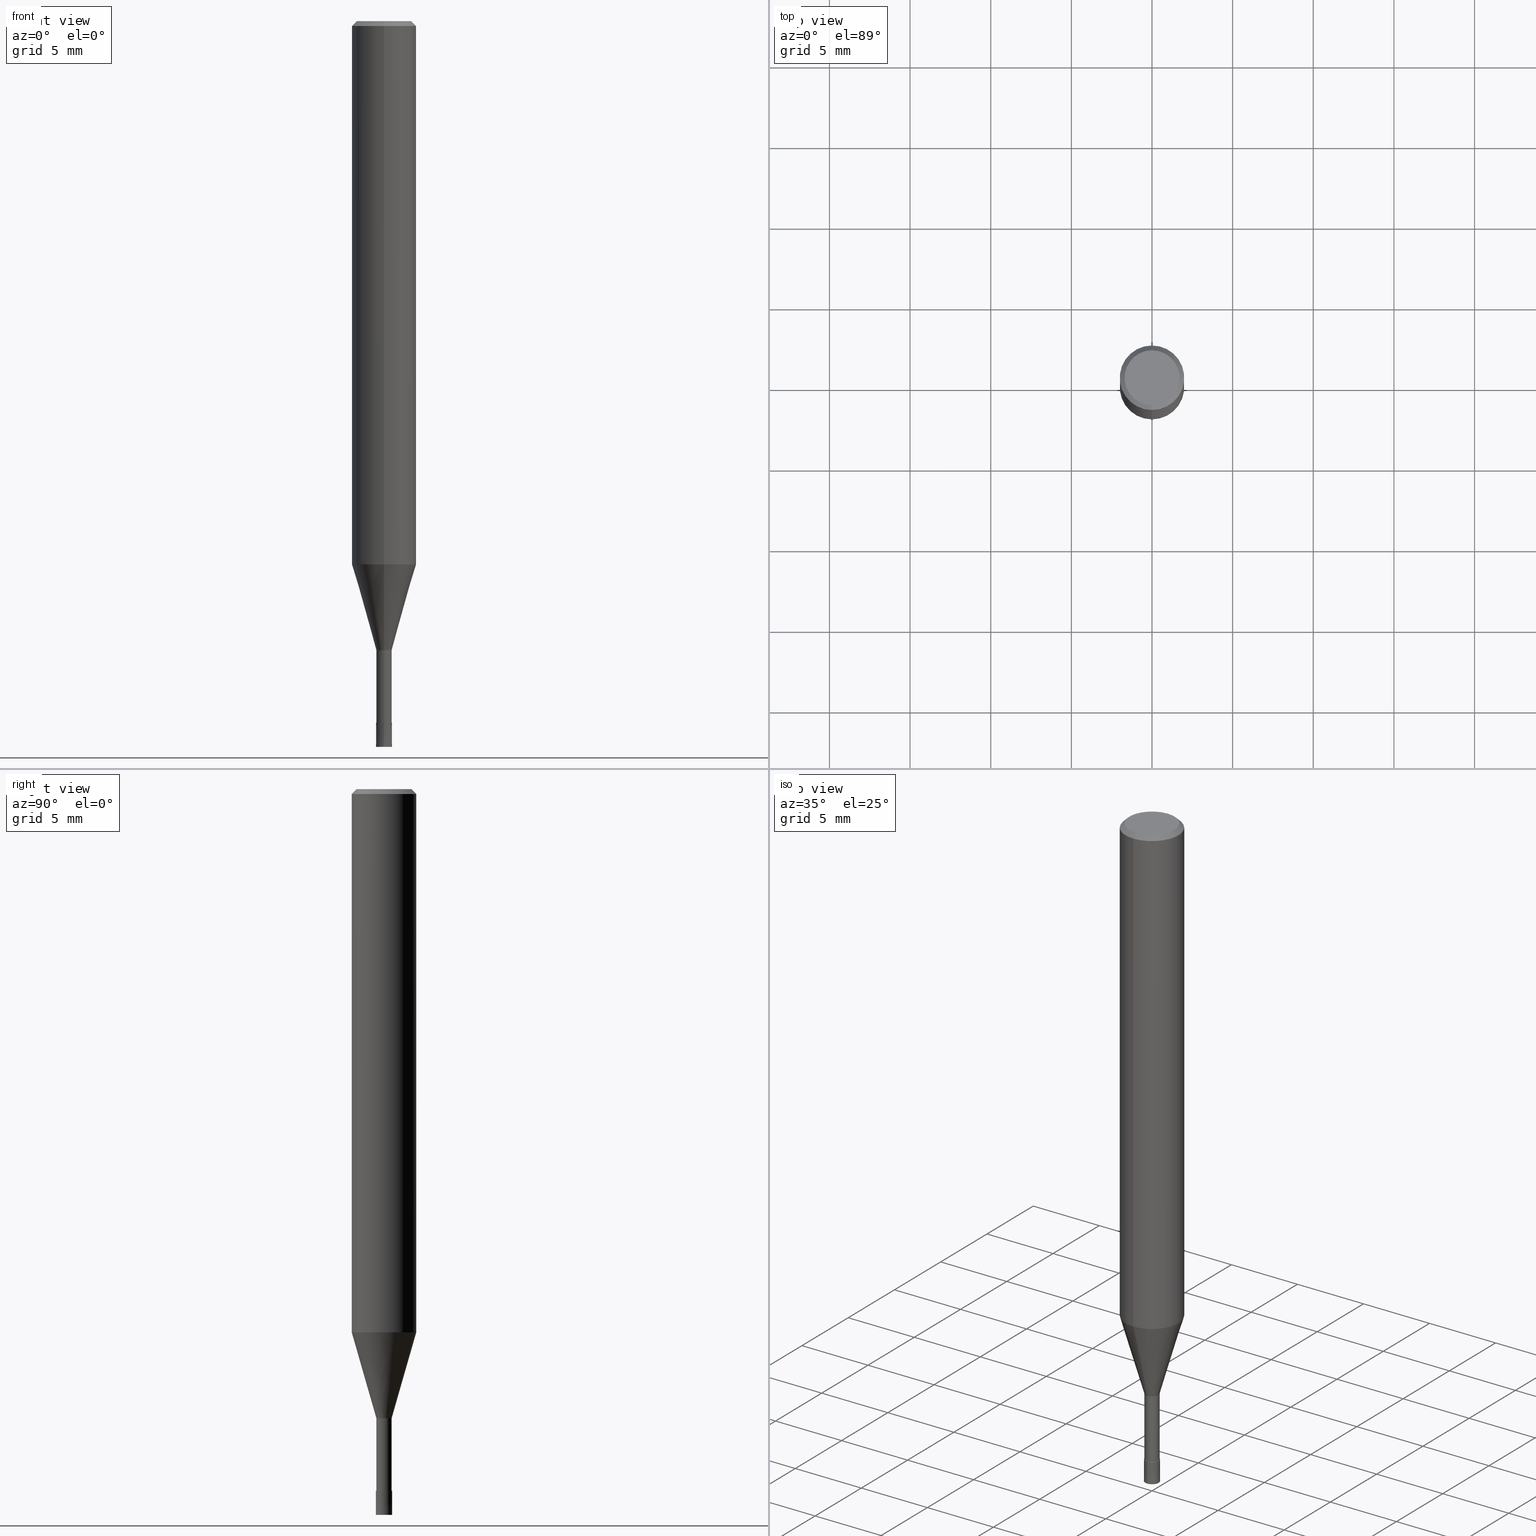
[diagram: canonical four-view strip — front | top / right | iso, engineering-drawing reading convention]
A machine part, canonical four-view strip (front | top / right | iso — engineering-drawing reading convention). The complete STEP part file that produces these views, byte-faithful:
ISO-10303-21;
HEADER;
FILE_DESCRIPTION(('no description'),'unknown implementation level');
FILE_NAME('HLS2010-060-Huellk.stp','  ',('CIMSOURCE GmbH'),('CADClick - KiM GmbH - www.kimweb.de'),'unknown preprocess','ACIS','unknown authorization');
FILE_SCHEMA(('automotive_design'));
ENDSEC;
DATA;
#1=MECHANICAL_DESIGN_GEOMETRIC_PRESENTATION_REPRESENTATION(' ',(#14,#15,#16,#17,#18,#19,#20,#21,#22,#23,#24,#25,#26,#27,#28,#29,#30,#31,#32,#33,#34,#35,#36,#37,#38,#39,#40,#41,#42,#43,#44,#45,#46,#47,#48,#49,#50,#51,#52,#53,#54,#55,#56,#57,#58,#59,#60,#61,#62,#63,#64,#65,#66,#67,#68,#69,#70,#71,#72),#10);
#2=PRODUCT_DEFINITION_CONTEXT('',#73,'design');
#3=APPLICATION_PROTOCOL_DEFINITION('INTERNATIONAL STANDARD','automotive_design',1994,#73);
#4=PRODUCT_CATEGORY_RELATIONSHIP('NONE','NONE',#74,#75);
#5=SHAPE_DEFINITION_REPRESENTATION(#76,#77);
#6=PRODUCT_DEFINITION_CONTEXT('',#78,'design');
#7=APPLICATION_PROTOCOL_DEFINITION('INTERNATIONAL STANDARD','automotive_design',1994,#78);
#8=PRODUCT_CATEGORY_RELATIONSHIP('NONE','NONE',#79,#80);
#9=SHAPE_DEFINITION_REPRESENTATION(#81,#82);
#10= (GEOMETRIC_REPRESENTATION_CONTEXT(3)GLOBAL_UNCERTAINTY_ASSIGNED_CONTEXT((#85))GLOBAL_UNIT_ASSIGNED_CONTEXT((#87,#88,#89))REPRESENTATION_CONTEXT('NONE','WORKSPACE'));
#14=STYLED_ITEM('',(#91),#92);
#15=STYLED_ITEM('',(#93),#94);
#16=STYLED_ITEM('',(#95),#96);
#17=STYLED_ITEM('',(#97),#98);
#18=STYLED_ITEM('',(#99),#100);
#19=STYLED_ITEM('',(#101),#102);
#20=STYLED_ITEM('',(#103),#104);
#21=STYLED_ITEM('',(#105),#106);
#22=STYLED_ITEM('',(#107),#108);
#23=STYLED_ITEM('',(#109),#110);
#24=STYLED_ITEM('',(#111),#112);
#25=STYLED_ITEM('',(#113),#114);
#26=STYLED_ITEM('',(#115),#116);
#27=STYLED_ITEM('',(#117),#118);
#28=STYLED_ITEM('',(#119),#120);
#29=STYLED_ITEM('',(#121),#122);
#30=STYLED_ITEM('',(#123),#124);
#31=STYLED_ITEM('',(#125),#126);
#32=STYLED_ITEM('',(#127),#128);
#33=STYLED_ITEM('',(#129),#130);
#34=STYLED_ITEM('',(#131),#132);
#35=STYLED_ITEM('',(#133),#134);
#36=STYLED_ITEM('',(#135),#136);
#37=STYLED_ITEM('',(#137),#138);
#38=STYLED_ITEM('',(#139),#140);
#39=STYLED_ITEM('',(#141),#142);
#40=STYLED_ITEM('',(#143),#144);
#41=STYLED_ITEM('',(#145),#146);
#42=STYLED_ITEM('',(#147),#148);
#43=STYLED_ITEM('',(#149),#150);
#44=STYLED_ITEM('',(#151),#152);
#45=STYLED_ITEM('',(#153),#154);
#46=STYLED_ITEM('',(#155),#156);
#47=STYLED_ITEM('',(#157),#158);
#48=STYLED_ITEM('',(#159),#160);
#49=STYLED_ITEM('',(#161),#162);
#50=STYLED_ITEM('',(#163),#164);
#51=STYLED_ITEM('',(#165),#166);
#52=STYLED_ITEM('',(#167),#168);
#53=STYLED_ITEM('',(#169),#170);
#54=STYLED_ITEM('',(#171),#172);
#55=STYLED_ITEM('',(#173),#174);
#56=STYLED_ITEM('',(#175),#176);
#57=STYLED_ITEM('',(#177),#178);
#58=STYLED_ITEM('',(#179),#180);
#59=STYLED_ITEM('',(#181),#182);
#60=STYLED_ITEM('',(#183),#184);
#61=STYLED_ITEM('',(#185),#186);
#62=STYLED_ITEM('',(#187),#188);
#63=STYLED_ITEM('',(#189),#190);
#64=STYLED_ITEM('',(#191),#192);
#65=STYLED_ITEM('',(#193),#194);
#66=STYLED_ITEM('',(#195),#196);
#67=STYLED_ITEM('',(#197),#198);
#68=STYLED_ITEM('',(#199),#200);
#69=STYLED_ITEM('',(#201),#202);
#70=STYLED_ITEM('',(#203),#204);
#71=STYLED_ITEM('',(#205),#206);
#72=STYLED_ITEM('',(#207),#208);
#73=APPLICATION_CONTEXT(' ');
#74=PRODUCT_CATEGORY('part','NONE');
#75=PRODUCT_RELATED_PRODUCT_CATEGORY('detail',' ',(#209));
#76=PRODUCT_DEFINITION_SHAPE('NONE','NONE',#210);
#77=ADVANCED_BREP_SHAPE_REPRESENTATION('1',(#138,#211),#10);
#78=APPLICATION_CONTEXT(' ');
#79=PRODUCT_CATEGORY('part','NONE');
#80=PRODUCT_RELATED_PRODUCT_CATEGORY('detail',' ',(#212));
#81=PRODUCT_DEFINITION_SHAPE('NONE','NONE',#213);
#82=ADVANCED_BREP_SHAPE_REPRESENTATION('2',(#126,#214),#10);
#85=UNCERTAINTY_MEASURE_WITH_UNIT(LENGTH_MEASURE(1.0E-006),#87,'','');
#87= (CONVERSION_BASED_UNIT('MILLIMETRE',#217)LENGTH_UNIT()NAMED_UNIT(#220));
#88= (NAMED_UNIT(#222)PLANE_ANGLE_UNIT()SI_UNIT($,.RADIAN.));
#89= (NAMED_UNIT(#222)SOLID_ANGLE_UNIT()SI_UNIT($,.STERADIAN.));
#91=PRESENTATION_STYLE_ASSIGNMENT((#228));
#92=VERTEX_POINT('',#229);
#93=PRESENTATION_STYLE_ASSIGNMENT((#230));
#94=EDGE_CURVE('',#98,#148,#231,.T.);
#95=PRESENTATION_STYLE_ASSIGNMENT((#232));
#96=EDGE_CURVE('',#204,#196,#233,.T.);
#97=PRESENTATION_STYLE_ASSIGNMENT((#234));
#98=VERTEX_POINT('',#235);
#99=PRESENTATION_STYLE_ASSIGNMENT((#236));
#100=EDGE_CURVE('',#162,#146,#237,.T.);
#101=PRESENTATION_STYLE_ASSIGNMENT((#238));
#102=EDGE_CURVE('',#98,#92,#239,.T.);
#103=PRESENTATION_STYLE_ASSIGNMENT((#240));
#104=VERTEX_POINT('',#241);
#105=PRESENTATION_STYLE_ASSIGNMENT((#242));
#106=VERTEX_POINT('',#243);
#107=PRESENTATION_STYLE_ASSIGNMENT((#244));
#108=VERTEX_POINT('',#245);
#109=PRESENTATION_STYLE_ASSIGNMENT((#246));
#110=EDGE_CURVE('',#108,#196,#247,.T.);
#111=PRESENTATION_STYLE_ASSIGNMENT((#248));
#112=EDGE_CURVE('',#148,#104,#249,.T.);
#113=PRESENTATION_STYLE_ASSIGNMENT((#250));
#114=EDGE_CURVE('',#190,#104,#251,.T.);
#115=PRESENTATION_STYLE_ASSIGNMENT((#252));
#116=EDGE_CURVE('',#106,#204,#253,.T.);
#117=PRESENTATION_STYLE_ASSIGNMENT((#254));
#118=ADVANCED_FACE('',(#255),#256,.T.);
#119=PRESENTATION_STYLE_ASSIGNMENT((#257));
#120=ADVANCED_FACE('',(#258),#259,.T.);
#121=PRESENTATION_STYLE_ASSIGNMENT((#260));
#122=VERTEX_POINT('',#261);
#123=PRESENTATION_STYLE_ASSIGNMENT((#262));
#124=EDGE_CURVE('',#122,#106,#263,.T.);
#125=PRESENTATION_STYLE_ASSIGNMENT((#264));
#126=MANIFOLD_SOLID_BREP('2',#265);
#127=PRESENTATION_STYLE_ASSIGNMENT((#266));
#128=EDGE_CURVE('',#180,#92,#267,.T.);
#129=PRESENTATION_STYLE_ASSIGNMENT((#268));
#130=ADVANCED_FACE('',(#269),#270,.T.);
#131=PRESENTATION_STYLE_ASSIGNMENT((#271));
#132=EDGE_CURVE('',#204,#172,#272,.T.);
#133=PRESENTATION_STYLE_ASSIGNMENT((#273));
#134=EDGE_CURVE('',#164,#142,#274,.T.);
#135=PRESENTATION_STYLE_ASSIGNMENT((#275));
#136=ADVANCED_FACE('',(#276),#277,.T.);
#137=PRESENTATION_STYLE_ASSIGNMENT((#278));
#138=MANIFOLD_SOLID_BREP('1',#279);
#139=PRESENTATION_STYLE_ASSIGNMENT((#280));
#140=EDGE_CURVE('',#104,#190,#281,.T.);
#141=PRESENTATION_STYLE_ASSIGNMENT((#282));
#142=VERTEX_POINT('',#283);
#143=PRESENTATION_STYLE_ASSIGNMENT((#284));
#144=ADVANCED_FACE('',(#285),#286,.T.);
#145=PRESENTATION_STYLE_ASSIGNMENT((#287));
#146=VERTEX_POINT('',#288);
#147=PRESENTATION_STYLE_ASSIGNMENT((#289));
#148=VERTEX_POINT('',#290);
#149=PRESENTATION_STYLE_ASSIGNMENT((#291));
#150=ADVANCED_FACE('',(#292),#293,.T.);
#151=PRESENTATION_STYLE_ASSIGNMENT((#294));
#152=ADVANCED_FACE('',(#295),#296,.T.);
#153=PRESENTATION_STYLE_ASSIGNMENT((#297));
#154=EDGE_CURVE('',#92,#180,#298,.T.);
#155=PRESENTATION_STYLE_ASSIGNMENT((#299));
#156=ADVANCED_FACE('',(#300),#301,.T.);
#157=PRESENTATION_STYLE_ASSIGNMENT((#302));
#158=EDGE_CURVE('',#142,#146,#303,.T.);
#159=PRESENTATION_STYLE_ASSIGNMENT((#304));
#160=EDGE_CURVE('',#180,#148,#305,.T.);
#161=PRESENTATION_STYLE_ASSIGNMENT((#306));
#162=VERTEX_POINT('',#307);
#163=PRESENTATION_STYLE_ASSIGNMENT((#308));
#164=VERTEX_POINT('',#309);
#165=PRESENTATION_STYLE_ASSIGNMENT((#310));
#166=EDGE_CURVE('',#162,#164,#311,.T.);
#167=PRESENTATION_STYLE_ASSIGNMENT((#312));
#168=EDGE_CURVE('',#172,#108,#313,.T.);
#169=PRESENTATION_STYLE_ASSIGNMENT((#314));
#170=ADVANCED_FACE('',(#315),#316,.T.);
#171=PRESENTATION_STYLE_ASSIGNMENT((#317));
#172=VERTEX_POINT('',#318);
#173=PRESENTATION_STYLE_ASSIGNMENT((#319));
#174=EDGE_CURVE('',#190,#98,#320,.T.);
#175=PRESENTATION_STYLE_ASSIGNMENT((#321));
#176=EDGE_CURVE('',#146,#162,#322,.T.);
#177=PRESENTATION_STYLE_ASSIGNMENT((#323));
#178=ADVANCED_FACE('',(#324),#325,.T.);
#179=PRESENTATION_STYLE_ASSIGNMENT((#326));
#180=VERTEX_POINT('',#327);
#181=PRESENTATION_STYLE_ASSIGNMENT((#328));
#182=ADVANCED_FACE('',(#329),#330,.T.);
#183=PRESENTATION_STYLE_ASSIGNMENT((#331));
#184=ADVANCED_FACE('',(#332),#333,.T.);
#185=PRESENTATION_STYLE_ASSIGNMENT((#334));
#186=EDGE_CURVE('',#196,#122,#335,.T.);
#187=PRESENTATION_STYLE_ASSIGNMENT((#336));
#188=ADVANCED_FACE('',(#337),#338,.T.);
#189=PRESENTATION_STYLE_ASSIGNMENT((#339));
#190=VERTEX_POINT('',#340);
#191=PRESENTATION_STYLE_ASSIGNMENT((#341));
#192=EDGE_CURVE('',#196,#204,#342,.T.);
#193=PRESENTATION_STYLE_ASSIGNMENT((#343));
#194=EDGE_CURVE('',#106,#122,#344,.T.);
#195=PRESENTATION_STYLE_ASSIGNMENT((#345));
#196=VERTEX_POINT('',#346);
#197=PRESENTATION_STYLE_ASSIGNMENT((#347));
#198=EDGE_CURVE('',#142,#164,#348,.T.);
#199=PRESENTATION_STYLE_ASSIGNMENT((#349));
#200=ADVANCED_FACE('',(#350),#351,.T.);
#201=PRESENTATION_STYLE_ASSIGNMENT((#352));
#202=ADVANCED_FACE('',(#353,#354),#355,.T.);
#203=PRESENTATION_STYLE_ASSIGNMENT((#356));
#204=VERTEX_POINT('',#357);
#205=PRESENTATION_STYLE_ASSIGNMENT((#358));
#206=EDGE_CURVE('',#108,#172,#359,.T.);
#207=PRESENTATION_STYLE_ASSIGNMENT((#360));
#208=EDGE_CURVE('',#148,#98,#361,.T.);
#209=PRODUCT('1','1','PART-1-DESC',(#362));
#210=PRODUCT_DEFINITION('NONE','NONE',#363,#2);
#211=AXIS2_PLACEMENT_3D('',#364,#365,#366);
#212=PRODUCT('2','2','PART-2-DESC',(#367));
#213=PRODUCT_DEFINITION('NONE','NONE',#368,#6);
#214=AXIS2_PLACEMENT_3D('',#369,#370,#371);
#217=LENGTH_MEASURE_WITH_UNIT(LENGTH_MEASURE(1.0),#372);
#220=DIMENSIONAL_EXPONENTS(1.0,0.0,0.0,0.0,0.0,0.0,0.0);
#222=DIMENSIONAL_EXPONENTS(0.0,0.0,0.0,0.0,0.0,0.0,0.0);
#228=POINT_STYLE(' ',#373,POSITIVE_LENGTH_MEASURE(1.0E-006),#374);
#229=CARTESIAN_POINT('',(2.44915147732706E-016,-1.99995,-33.682));
#230=CURVE_STYLE('',#375,POSITIVE_LENGTH_MEASURE(1.0E-006),#376);
#231=CIRCLE('',#377,0.47495);
#232=CURVE_STYLE('',#378,POSITIVE_LENGTH_MEASURE(1.0E-006),#379);
#233=CIRCLE('',#380,2.0);
#234=POINT_STYLE(' ',#381,POSITIVE_LENGTH_MEASURE(1.0E-006),#382);
#235=CARTESIAN_POINT('',(5.81626787747938E-017,-0.47495,-39.0));
#236=CURVE_STYLE('',#383,POSITIVE_LENGTH_MEASURE(1.0E-006),#384);
#237=CIRCLE('',#385,0.5);
#238=CURVE_STYLE('',#386,POSITIVE_LENGTH_MEASURE(1.0E-006),#387);
#239=LINE('',#388,#389);
#240=POINT_STYLE(' ',#390,POSITIVE_LENGTH_MEASURE(1.0E-006),#391);
#241=CARTESIAN_POINT('',(0.0,0.47495,-43.5));
#242=POINT_STYLE(' ',#392,POSITIVE_LENGTH_MEASURE(1.0E-006),#393);
#243=CARTESIAN_POINT('',(2.44921270764475E-016,-2.0,-33.682));
#244=POINT_STYLE(' ',#394,POSITIVE_LENGTH_MEASURE(1.0E-006),#395);
#245=CARTESIAN_POINT('',(0.0,1.7,0.0));
#246=CURVE_STYLE('',#396,POSITIVE_LENGTH_MEASURE(1.0E-006),#397);
#247=LINE('',#398,#399);
#248=CURVE_STYLE('',#400,POSITIVE_LENGTH_MEASURE(1.0E-006),#401);
#249=LINE('',#402,#403);
#250=CURVE_STYLE('',#404,POSITIVE_LENGTH_MEASURE(1.0E-006),#405);
#251=CIRCLE('',#406,0.47495);
#252=CURVE_STYLE('',#407,POSITIVE_LENGTH_MEASURE(1.0E-006),#408);
#253=LINE('',#409,#410);
#254=SURFACE_STYLE_USAGE(.BOTH.,#411);
#255=FACE_OUTER_BOUND('',#412,.T.);
#256=CYLINDRICAL_SURFACE('',#413,0.47495);
#257=SURFACE_STYLE_USAGE(.BOTH.,#414);
#258=FACE_OUTER_BOUND('',#415,.T.);
#259=CYLINDRICAL_SURFACE('',#416,2.0);
#260=POINT_STYLE(' ',#417,POSITIVE_LENGTH_MEASURE(1.0E-006),#418);
#261=CARTESIAN_POINT('',(0.0,2.0,-33.682));
#262=CURVE_STYLE('',#419,POSITIVE_LENGTH_MEASURE(1.0E-006),#420);
#263=CIRCLE('',#421,2.0);
#264=SURFACE_STYLE_USAGE(.BOTH.,#422);
#265=CLOSED_SHELL('',(#182,#200,#136,#170));
#266=CURVE_STYLE('',#423,POSITIVE_LENGTH_MEASURE(1.0E-006),#424);
#267=CIRCLE('',#425,1.99995);
#268=SURFACE_STYLE_USAGE(.BOTH.,#426);
#269=FACE_OUTER_BOUND('',#427,.T.);
#270=CYLINDRICAL_SURFACE('',#428,2.0);
#271=CURVE_STYLE('',#429,POSITIVE_LENGTH_MEASURE(1.0E-006),#430);
#272=LINE('',#431,#432);
#273=CURVE_STYLE('',#433,POSITIVE_LENGTH_MEASURE(1.0E-006),#434);
#274=CIRCLE('',#435,0.4999);
#275=SURFACE_STYLE_USAGE(.BOTH.,#436);
#276=FACE_OUTER_BOUND('',#437,.T.);
#277=CONICAL_SURFACE('',#438,0.49995,6.66666665678939E-005);
#278=SURFACE_STYLE_USAGE(.BOTH.,#439);
#279=CLOSED_SHELL('',(#118,#184,#130,#178,#202,#144,#156,#120,#150,#188,#152));
#280=CURVE_STYLE('',#440,POSITIVE_LENGTH_MEASURE(1.0E-006),#441);
#281=CIRCLE('',#442,0.47495);
#282=POINT_STYLE(' ',#443,POSITIVE_LENGTH_MEASURE(1.0E-006),#444);
#283=CARTESIAN_POINT('',(0.0,0.4999,-43.5));
#284=SURFACE_STYLE_USAGE(.BOTH.,#445);
#285=FACE_OUTER_BOUND('',#446,.T.);
#286=PLANE('',#447);
#287=POINT_STYLE(' ',#448,POSITIVE_LENGTH_MEASURE(1.0E-006),#449);
#288=CARTESIAN_POINT('',(0.0,0.5,-45.0));
#289=POINT_STYLE(' ',#450,POSITIVE_LENGTH_MEASURE(1.0E-006),#451);
#290=CARTESIAN_POINT('',(0.0,0.47495,-39.0));
#291=SURFACE_STYLE_USAGE(.BOTH.,#452);
#292=FACE_OUTER_BOUND('',#453,.T.);
#293=CONICAL_SURFACE('',#454,1.23745,0.279267977304115);
#294=SURFACE_STYLE_USAGE(.BOTH.,#455);
#295=FACE_OUTER_BOUND('',#456,.T.);
#296=PLANE('',#457);
#297=CURVE_STYLE('',#458,POSITIVE_LENGTH_MEASURE(1.0E-006),#459);
#298=CIRCLE('',#460,1.99995);
#299=SURFACE_STYLE_USAGE(.BOTH.,#461);
#300=FACE_OUTER_BOUND('',#462,.T.);
#301=CONICAL_SURFACE('',#463,1.85,0.785398163397453);
#302=CURVE_STYLE('',#464,POSITIVE_LENGTH_MEASURE(1.0E-006),#465);
#303=LINE('',#466,#467);
#304=CURVE_STYLE('',#468,POSITIVE_LENGTH_MEASURE(1.0E-006),#469);
#305=LINE('',#470,#471);
#306=POINT_STYLE(' ',#472,POSITIVE_LENGTH_MEASURE(1.0E-006),#473);
#307=CARTESIAN_POINT('',(6.12303176911189E-017,-0.5,-45.0));
#308=POINT_STYLE(' ',#474,POSITIVE_LENGTH_MEASURE(1.0E-006),#475);
#309=CARTESIAN_POINT('',(6.12180716275806E-017,-0.4999,-43.5));
#310=CURVE_STYLE('',#476,POSITIVE_LENGTH_MEASURE(1.0E-006),#477);
#311=LINE('',#478,#479);
#312=CURVE_STYLE('',#480,POSITIVE_LENGTH_MEASURE(1.0E-006),#481);
#313=CIRCLE('',#482,1.7);
#314=SURFACE_STYLE_USAGE(.BOTH.,#483);
#315=FACE_OUTER_BOUND('',#484,.T.);
#316=PLANE('',#485);
#317=POINT_STYLE(' ',#486,POSITIVE_LENGTH_MEASURE(1.0E-006),#487);
#318=CARTESIAN_POINT('',(2.08183080149804E-016,-1.7,0.0));
#319=CURVE_STYLE('',#488,POSITIVE_LENGTH_MEASURE(1.0E-006),#489);
#320=LINE('',#490,#491);
#321=CURVE_STYLE('',#492,POSITIVE_LENGTH_MEASURE(1.0E-006),#493);
#322=CIRCLE('',#494,0.5);
#323=SURFACE_STYLE_USAGE(.BOTH.,#495);
#324=FACE_OUTER_BOUND('',#496,.T.);
#325=CONICAL_SURFACE('',#497,1.85,0.785398163397453);
#326=POINT_STYLE(' ',#498,POSITIVE_LENGTH_MEASURE(1.0E-006),#499);
#327=CARTESIAN_POINT('',(0.0,1.99995,-33.682));
#328=SURFACE_STYLE_USAGE(.BOTH.,#500);
#329=FACE_OUTER_BOUND('',#501,.T.);
#330=CONICAL_SURFACE('',#502,0.49995,6.66666665678939E-005);
#331=SURFACE_STYLE_USAGE(.BOTH.,#503);
#332=FACE_OUTER_BOUND('',#504,.T.);
#333=CONICAL_SURFACE('',#505,1.23745,0.279267977304115);
#334=CURVE_STYLE('',#506,POSITIVE_LENGTH_MEASURE(1.0E-006),#507);
#335=LINE('',#508,#509);
#336=SURFACE_STYLE_USAGE(.BOTH.,#510);
#337=FACE_OUTER_BOUND('',#511,.T.);
#338=CYLINDRICAL_SURFACE('',#512,0.47495);
#339=POINT_STYLE(' ',#513,POSITIVE_LENGTH_MEASURE(1.0E-006),#514);
#340=CARTESIAN_POINT('',(5.81626787747938E-017,-0.47495,-43.5));
#341=CURVE_STYLE('',#515,POSITIVE_LENGTH_MEASURE(1.0E-006),#516);
#342=CIRCLE('',#517,2.0);
#343=CURVE_STYLE('',#518,POSITIVE_LENGTH_MEASURE(1.0E-006),#519);
#344=CIRCLE('',#520,2.0);
#345=POINT_STYLE(' ',#521,POSITIVE_LENGTH_MEASURE(1.0E-006),#522);
#346=CARTESIAN_POINT('',(0.0,2.0,-0.299999999999997));
#347=CURVE_STYLE('',#523,POSITIVE_LENGTH_MEASURE(1.0E-006),#524);
#348=CIRCLE('',#525,0.4999);
#349=SURFACE_STYLE_USAGE(.BOTH.,#526);
#350=FACE_OUTER_BOUND('',#527,.T.);
#351=PLANE('',#528);
#352=SURFACE_STYLE_USAGE(.BOTH.,#529);
#353=FACE_OUTER_BOUND('',#530,.T.);
#354=FACE_BOUND('',#531,.T.);
#355=PLANE('',#532);
#356=POINT_STYLE(' ',#533,POSITIVE_LENGTH_MEASURE(1.0E-006),#534);
#357=CARTESIAN_POINT('',(2.44921270764475E-016,-2.0,-0.299999999999997));
#358=CURVE_STYLE('',#535,POSITIVE_LENGTH_MEASURE(1.0E-006),#536);
#359=CIRCLE('',#537,1.7);
#360=CURVE_STYLE('',#538,POSITIVE_LENGTH_MEASURE(1.0E-006),#539);
#361=CIRCLE('',#540,0.47495);
#362=PRODUCT_CONTEXT('',#73,'mechanical');
#363=PRODUCT_DEFINITION_FORMATION_WITH_SPECIFIED_SOURCE(' ','NONE',#209,.NOT_KNOWN.);
#364=CARTESIAN_POINT('',(0.0,0.0,0.0));
#365=DIRECTION('',(0.0,0.0,1.0));
#366=DIRECTION('',(1.0,0.0,0.0));
#367=PRODUCT_CONTEXT('',#78,'mechanical');
#368=PRODUCT_DEFINITION_FORMATION_WITH_SPECIFIED_SOURCE(' ','NONE',#212,.NOT_KNOWN.);
#369=CARTESIAN_POINT('',(0.0,0.0,0.0));
#370=DIRECTION('',(0.0,0.0,1.0));
#371=DIRECTION('',(1.0,0.0,0.0));
#372= (NAMED_UNIT(#220)LENGTH_UNIT()SI_UNIT(.MILLI.,.METRE.));
#373=PRE_DEFINED_MARKER('');
#374=COLOUR_RGB('',0.498039215803146,0.498039215803146,0.498039215803146);
#375=DRAUGHTING_PRE_DEFINED_CURVE_FONT('continuous');
#376=COLOUR_RGB('',0.498039215803146,0.498039215803146,0.498039215803146);
#377=AXIS2_PLACEMENT_3D('',#542,#543,#544);
#378=DRAUGHTING_PRE_DEFINED_CURVE_FONT('continuous');
#379=COLOUR_RGB('',0.498039215803146,0.498039215803146,0.498039215803146);
#380=AXIS2_PLACEMENT_3D('',#545,#546,#547);
#381=PRE_DEFINED_MARKER('');
#382=COLOUR_RGB('',0.498039215803146,0.498039215803146,0.498039215803146);
#383=DRAUGHTING_PRE_DEFINED_CURVE_FONT('continuous');
#384=COLOUR_RGB('',0.800000011920929,0.800000011920929,0.800000011920929);
#385=AXIS2_PLACEMENT_3D('',#548,#549,#550);
#386=DRAUGHTING_PRE_DEFINED_CURVE_FONT('continuous');
#387=COLOUR_RGB('',0.498039215803146,0.498039215803146,0.498039215803146);
#388=CARTESIAN_POINT('',(1.5153891325375E-016,-1.23745,-36.341));
#389=VECTOR('',#551,1.0);
#390=PRE_DEFINED_MARKER('');
#391=COLOUR_RGB('',0.498039215803146,0.498039215803146,0.498039215803146);
#392=PRE_DEFINED_MARKER('');
#393=COLOUR_RGB('',0.498039215803146,0.498039215803146,0.498039215803146);
#394=PRE_DEFINED_MARKER('');
#395=COLOUR_RGB('',0.498039215803146,0.498039215803146,0.498039215803146);
#396=DRAUGHTING_PRE_DEFINED_CURVE_FONT('continuous');
#397=COLOUR_RGB('',0.498039215803146,0.498039215803146,0.498039215803146);
#398=CARTESIAN_POINT('',(-2.2655217545714E-016,1.85,-0.149999999999999));
#399=VECTOR('',#552,1.0);
#400=DRAUGHTING_PRE_DEFINED_CURVE_FONT('continuous');
#401=COLOUR_RGB('',0.498039215803146,0.498039215803146,0.498039215803146);
#402=CARTESIAN_POINT('',(-5.81626787747938E-017,0.47495,-41.25));
#403=VECTOR('',#553,1.0);
#404=DRAUGHTING_PRE_DEFINED_CURVE_FONT('continuous');
#405=COLOUR_RGB('',0.498039215803146,0.498039215803146,0.498039215803146);
#406=AXIS2_PLACEMENT_3D('',#554,#555,#556);
#407=DRAUGHTING_PRE_DEFINED_CURVE_FONT('continuous');
#408=COLOUR_RGB('',0.498039215803146,0.498039215803146,0.498039215803146);
#409=CARTESIAN_POINT('',(2.44921270764475E-016,-2.0,-16.991));
#410=VECTOR('',#557,1.0);
#411=SURFACE_SIDE_STYLE('',(#558));
#412=EDGE_LOOP('',(#559,#560,#561,#562));
#413=AXIS2_PLACEMENT_3D('',#563,#564,#565);
#414=SURFACE_SIDE_STYLE('',(#566));
#415=EDGE_LOOP('',(#567,#568,#569,#570));
#416=AXIS2_PLACEMENT_3D('',#571,#572,#573);
#417=PRE_DEFINED_MARKER('');
#418=COLOUR_RGB('',0.498039215803146,0.498039215803146,0.498039215803146);
#419=DRAUGHTING_PRE_DEFINED_CURVE_FONT('continuous');
#420=COLOUR_RGB('',0.498039215803146,0.498039215803146,0.498039215803146);
#421=AXIS2_PLACEMENT_3D('',#574,#575,#576);
#422=SURFACE_SIDE_STYLE('',(#577));
#423=DRAUGHTING_PRE_DEFINED_CURVE_FONT('continuous');
#424=COLOUR_RGB('',0.498039215803146,0.498039215803146,0.498039215803146);
#425=AXIS2_PLACEMENT_3D('',#578,#579,#580);
#426=SURFACE_SIDE_STYLE('',(#581));
#427=EDGE_LOOP('',(#582,#583,#584,#585));
#428=AXIS2_PLACEMENT_3D('',#586,#587,#588);
#429=DRAUGHTING_PRE_DEFINED_CURVE_FONT('continuous');
#430=COLOUR_RGB('',0.498039215803146,0.498039215803146,0.498039215803146);
#431=CARTESIAN_POINT('',(2.2655217545714E-016,-1.85,-0.149999999999999));
#432=VECTOR('',#589,1.0);
#433=DRAUGHTING_PRE_DEFINED_CURVE_FONT('continuous');
#434=COLOUR_RGB('',0.800000011920929,0.800000011920929,0.800000011920929);
#435=AXIS2_PLACEMENT_3D('',#590,#591,#592);
#436=SURFACE_SIDE_STYLE('',(#593));
#437=EDGE_LOOP('',(#594,#595,#596,#597));
#438=AXIS2_PLACEMENT_3D('',#598,#599,#600);
#439=SURFACE_SIDE_STYLE('',(#601));
#440=DRAUGHTING_PRE_DEFINED_CURVE_FONT('continuous');
#441=COLOUR_RGB('',0.498039215803146,0.498039215803146,0.498039215803146);
#442=AXIS2_PLACEMENT_3D('',#602,#603,#604);
#443=PRE_DEFINED_MARKER('');
#444=COLOUR_RGB('',0.800000011920929,0.800000011920929,0.800000011920929);
#445=SURFACE_SIDE_STYLE('',(#605));
#446=EDGE_LOOP('',(#606,#607));
#447=AXIS2_PLACEMENT_3D('',#608,#609,#610);
#448=PRE_DEFINED_MARKER('');
#449=COLOUR_RGB('',0.800000011920929,0.800000011920929,0.800000011920929);
#450=PRE_DEFINED_MARKER('');
#451=COLOUR_RGB('',0.498039215803146,0.498039215803146,0.498039215803146);
#452=SURFACE_SIDE_STYLE('',(#611));
#453=EDGE_LOOP('',(#612,#613,#614,#615));
#454=AXIS2_PLACEMENT_3D('',#616,#617,#618);
#455=SURFACE_SIDE_STYLE('',(#619));
#456=EDGE_LOOP('',(#620,#621));
#457=AXIS2_PLACEMENT_3D('',#622,#623,#624);
#458=DRAUGHTING_PRE_DEFINED_CURVE_FONT('continuous');
#459=COLOUR_RGB('',0.498039215803146,0.498039215803146,0.498039215803146);
#460=AXIS2_PLACEMENT_3D('',#625,#626,#627);
#461=SURFACE_SIDE_STYLE('',(#628));
#462=EDGE_LOOP('',(#629,#630,#631,#632));
#463=AXIS2_PLACEMENT_3D('',#633,#634,#635);
#464=DRAUGHTING_PRE_DEFINED_CURVE_FONT('continuous');
#465=COLOUR_RGB('',0.800000011920929,0.800000011920929,0.800000011920929);
#466=CARTESIAN_POINT('',(-6.12241946593497E-017,0.49995,-44.25));
#467=VECTOR('',#636,1.0);
#468=DRAUGHTING_PRE_DEFINED_CURVE_FONT('continuous');
#469=COLOUR_RGB('',0.498039215803146,0.498039215803146,0.498039215803146);
#470=CARTESIAN_POINT('',(-1.5153891325375E-016,1.23745,-36.341));
#471=VECTOR('',#637,1.0);
#472=PRE_DEFINED_MARKER('');
#473=COLOUR_RGB('',0.800000011920929,0.800000011920929,0.800000011920929);
#474=PRE_DEFINED_MARKER('');
#475=COLOUR_RGB('',0.800000011920929,0.800000011920929,0.800000011920929);
#476=DRAUGHTING_PRE_DEFINED_CURVE_FONT('continuous');
#477=COLOUR_RGB('',0.800000011920929,0.800000011920929,0.800000011920929);
#478=CARTESIAN_POINT('',(6.12241946593497E-017,-0.49995,-44.25));
#479=VECTOR('',#638,1.0);
#480=DRAUGHTING_PRE_DEFINED_CURVE_FONT('continuous');
#481=COLOUR_RGB('',0.498039215803146,0.498039215803146,0.498039215803146);
#482=AXIS2_PLACEMENT_3D('',#639,#640,#641);
#483=SURFACE_SIDE_STYLE('',(#642));
#484=EDGE_LOOP('',(#643,#644));
#485=AXIS2_PLACEMENT_3D('',#645,#646,#647);
#486=PRE_DEFINED_MARKER('');
#487=COLOUR_RGB('',0.498039215803146,0.498039215803146,0.498039215803146);
#488=DRAUGHTING_PRE_DEFINED_CURVE_FONT('continuous');
#489=COLOUR_RGB('',0.498039215803146,0.498039215803146,0.498039215803146);
#490=CARTESIAN_POINT('',(5.81626787747938E-017,-0.47495,-41.25));
#491=VECTOR('',#648,1.0);
#492=DRAUGHTING_PRE_DEFINED_CURVE_FONT('continuous');
#493=COLOUR_RGB('',0.800000011920929,0.800000011920929,0.800000011920929);
#494=AXIS2_PLACEMENT_3D('',#649,#650,#651);
#495=SURFACE_SIDE_STYLE('',(#652));
#496=EDGE_LOOP('',(#653,#654,#655,#656));
#497=AXIS2_PLACEMENT_3D('',#657,#658,#659);
#498=PRE_DEFINED_MARKER('');
#499=COLOUR_RGB('',0.498039215803146,0.498039215803146,0.498039215803146);
#500=SURFACE_SIDE_STYLE('',(#660));
#501=EDGE_LOOP('',(#661,#662,#663,#664));
#502=AXIS2_PLACEMENT_3D('',#665,#666,#667);
#503=SURFACE_SIDE_STYLE('',(#668));
#504=EDGE_LOOP('',(#669,#670,#671,#672));
#505=AXIS2_PLACEMENT_3D('',#673,#674,#675);
#506=DRAUGHTING_PRE_DEFINED_CURVE_FONT('continuous');
#507=COLOUR_RGB('',0.498039215803146,0.498039215803146,0.498039215803146);
#508=CARTESIAN_POINT('',(-2.44921270764475E-016,2.0,-16.991));
#509=VECTOR('',#676,1.0);
#510=SURFACE_SIDE_STYLE('',(#677));
#511=EDGE_LOOP('',(#678,#679,#680,#681));
#512=AXIS2_PLACEMENT_3D('',#682,#683,#684);
#513=PRE_DEFINED_MARKER('');
#514=COLOUR_RGB('',0.498039215803146,0.498039215803146,0.498039215803146);
#515=DRAUGHTING_PRE_DEFINED_CURVE_FONT('continuous');
#516=COLOUR_RGB('',0.498039215803146,0.498039215803146,0.498039215803146);
#517=AXIS2_PLACEMENT_3D('',#685,#686,#687);
#518=DRAUGHTING_PRE_DEFINED_CURVE_FONT('continuous');
#519=COLOUR_RGB('',0.498039215803146,0.498039215803146,0.498039215803146);
#520=AXIS2_PLACEMENT_3D('',#688,#689,#690);
#521=PRE_DEFINED_MARKER('');
#522=COLOUR_RGB('',0.498039215803146,0.498039215803146,0.498039215803146);
#523=DRAUGHTING_PRE_DEFINED_CURVE_FONT('continuous');
#524=COLOUR_RGB('',0.800000011920929,0.800000011920929,0.800000011920929);
#525=AXIS2_PLACEMENT_3D('',#691,#692,#693);
#526=SURFACE_SIDE_STYLE('',(#694));
#527=EDGE_LOOP('',(#695,#696));
#528=AXIS2_PLACEMENT_3D('',#697,#698,#699);
#529=SURFACE_SIDE_STYLE('',(#700));
#530=EDGE_LOOP('',(#701,#702));
#531=EDGE_LOOP('',(#703,#704));
#532=AXIS2_PLACEMENT_3D('',#705,#706,#707);
#533=PRE_DEFINED_MARKER('');
#534=COLOUR_RGB('',0.498039215803146,0.498039215803146,0.498039215803146);
#535=DRAUGHTING_PRE_DEFINED_CURVE_FONT('continuous');
#536=COLOUR_RGB('',0.498039215803146,0.498039215803146,0.498039215803146);
#537=AXIS2_PLACEMENT_3D('',#708,#709,#710);
#538=DRAUGHTING_PRE_DEFINED_CURVE_FONT('continuous');
#539=COLOUR_RGB('',0.498039215803146,0.498039215803146,0.498039215803146);
#540=AXIS2_PLACEMENT_3D('',#711,#712,#713);
#542=CARTESIAN_POINT('',(0.0,0.0,-39.0));
#543=DIRECTION('',(0.0,0.0,-1.0));
#544=DIRECTION('',(0.0,1.0,0.0));
#545=CARTESIAN_POINT('',(0.0,0.0,-0.299999999999997));
#546=DIRECTION('',(0.0,0.0,-1.0));
#547=DIRECTION('',(0.0,1.0,0.0));
#548=CARTESIAN_POINT('',(0.0,0.0,-45.0));
#549=DIRECTION('',(0.0,0.0,-1.0));
#550=DIRECTION('',(0.0,1.0,0.0));
#551=DIRECTION('',(3.37565264353533E-017,-0.275652060190515,0.961257479405349));
#552=DIRECTION('',(-8.6592745707194E-017,0.707106781186551,-0.707106781186544));
#553=DIRECTION('',(0.0,0.0,-1.0));
#554=CARTESIAN_POINT('',(0.0,0.0,-43.5));
#555=DIRECTION('',(0.0,0.0,-1.0));
#556=DIRECTION('',(0.0,1.0,0.0));
#557=DIRECTION('',(-0.0,-0.0,1.0));
#558=SURFACE_STYLE_FILL_AREA(#714);
#559=ORIENTED_EDGE('',*,*,#112,.F.);
#560=ORIENTED_EDGE('',*,*,#208,.T.);
#561=ORIENTED_EDGE('',*,*,#174,.F.);
#562=ORIENTED_EDGE('',*,*,#140,.F.);
#563=CARTESIAN_POINT('',(0.0,0.0,-41.25));
#564=DIRECTION('',(-0.0,-0.0,1.0));
#565=DIRECTION('',(0.0,1.0,0.0));
#566=SURFACE_STYLE_FILL_AREA(#715);
#567=ORIENTED_EDGE('',*,*,#186,.T.);
#568=ORIENTED_EDGE('',*,*,#194,.F.);
#569=ORIENTED_EDGE('',*,*,#116,.T.);
#570=ORIENTED_EDGE('',*,*,#96,.T.);
#571=CARTESIAN_POINT('',(0.0,0.0,-16.991));
#572=DIRECTION('',(-0.0,-0.0,1.0));
#573=DIRECTION('',(0.0,1.0,0.0));
#574=CARTESIAN_POINT('',(0.0,0.0,-33.682));
#575=DIRECTION('',(0.0,0.0,-1.0));
#576=DIRECTION('',(0.0,1.0,0.0));
#577=SURFACE_STYLE_FILL_AREA(#716);
#578=CARTESIAN_POINT('',(0.0,0.0,-33.682));
#579=DIRECTION('',(0.0,0.0,-1.0));
#580=DIRECTION('',(0.0,1.0,0.0));
#581=SURFACE_STYLE_FILL_AREA(#717);
#582=ORIENTED_EDGE('',*,*,#186,.F.);
#583=ORIENTED_EDGE('',*,*,#192,.T.);
#584=ORIENTED_EDGE('',*,*,#116,.F.);
#585=ORIENTED_EDGE('',*,*,#124,.F.);
#586=CARTESIAN_POINT('',(0.0,0.0,-16.991));
#587=DIRECTION('',(-0.0,-0.0,1.0));
#588=DIRECTION('',(0.0,1.0,0.0));
#589=DIRECTION('',(-8.6592745707194E-017,0.707106781186551,0.707106781186544));
#590=CARTESIAN_POINT('',(0.0,0.0,-43.5));
#591=DIRECTION('',(0.0,0.0,-1.0));
#592=DIRECTION('',(0.0,1.0,0.0));
#593=SURFACE_STYLE_FILL_AREA(#718);
#594=ORIENTED_EDGE('',*,*,#158,.T.);
#595=ORIENTED_EDGE('',*,*,#100,.F.);
#596=ORIENTED_EDGE('',*,*,#166,.T.);
#597=ORIENTED_EDGE('',*,*,#134,.T.);
#598=CARTESIAN_POINT('',(0.0,0.0,-44.25));
#599=DIRECTION('',(0.0,-0.0,-1.0));
#600=DIRECTION('',(0.0,1.0,0.0));
#601=SURFACE_STYLE_FILL_AREA(#719);
#602=CARTESIAN_POINT('',(0.0,0.0,-43.5));
#603=DIRECTION('',(0.0,0.0,-1.0));
#604=DIRECTION('',(0.0,1.0,0.0));
#605=SURFACE_STYLE_FILL_AREA(#720);
#606=ORIENTED_EDGE('',*,*,#206,.F.);
#607=ORIENTED_EDGE('',*,*,#168,.F.);
#608=CARTESIAN_POINT('',(0.0,0.85,0.0));
#609=DIRECTION('',(-0.0,0.0,1.0));
#610=DIRECTION('',(0.0,-1.0,0.0));
#611=SURFACE_STYLE_FILL_AREA(#721);
#612=ORIENTED_EDGE('',*,*,#160,.T.);
#613=ORIENTED_EDGE('',*,*,#94,.F.);
#614=ORIENTED_EDGE('',*,*,#102,.T.);
#615=ORIENTED_EDGE('',*,*,#154,.T.);
#616=CARTESIAN_POINT('',(0.0,0.0,-36.341));
#617=DIRECTION('',(-0.0,-0.0,1.0));
#618=DIRECTION('',(0.0,1.0,0.0));
#619=SURFACE_STYLE_FILL_AREA(#722);
#620=ORIENTED_EDGE('',*,*,#140,.T.);
#621=ORIENTED_EDGE('',*,*,#114,.T.);
#622=CARTESIAN_POINT('',(0.0,0.237475,-43.5));
#623=DIRECTION('',(0.0,0.0,-1.0));
#624=DIRECTION('',(0.0,1.0,0.0));
#625=CARTESIAN_POINT('',(0.0,0.0,-33.682));
#626=DIRECTION('',(0.0,0.0,-1.0));
#627=DIRECTION('',(0.0,1.0,0.0));
#628=SURFACE_STYLE_FILL_AREA(#723);
#629=ORIENTED_EDGE('',*,*,#110,.T.);
#630=ORIENTED_EDGE('',*,*,#96,.F.);
#631=ORIENTED_EDGE('',*,*,#132,.T.);
#632=ORIENTED_EDGE('',*,*,#168,.T.);
#633=CARTESIAN_POINT('',(0.0,0.0,-0.149999999999999));
#634=DIRECTION('',(0.0,-0.0,-1.0));
#635=DIRECTION('',(0.0,1.0,0.0));
#636=DIRECTION('',(-8.16404234067263E-021,6.66666665185112E-005,-0.999999997777778));
#637=DIRECTION('',(3.37565264353533E-017,-0.275652060190515,-0.961257479405349));
#638=DIRECTION('',(-8.16404234067263E-021,6.66666665185112E-005,0.999999997777778));
#639=CARTESIAN_POINT('',(0.0,0.0,0.0));
#640=DIRECTION('',(0.0,0.0,-1.0));
#641=DIRECTION('',(0.0,1.0,0.0));
#642=SURFACE_STYLE_FILL_AREA(#724);
#643=ORIENTED_EDGE('',*,*,#176,.T.);
#644=ORIENTED_EDGE('',*,*,#100,.T.);
#645=CARTESIAN_POINT('',(0.0,0.2475,-45.0));
#646=DIRECTION('',(0.0,0.0,-1.0));
#647=DIRECTION('',(0.0,1.0,0.0));
#648=DIRECTION('',(-0.0,-0.0,1.0));
#649=CARTESIAN_POINT('',(0.0,0.0,-45.0));
#650=DIRECTION('',(0.0,0.0,-1.0));
#651=DIRECTION('',(0.0,1.0,0.0));
#652=SURFACE_STYLE_FILL_AREA(#725);
#653=ORIENTED_EDGE('',*,*,#110,.F.);
#654=ORIENTED_EDGE('',*,*,#206,.T.);
#655=ORIENTED_EDGE('',*,*,#132,.F.);
#656=ORIENTED_EDGE('',*,*,#192,.F.);
#657=CARTESIAN_POINT('',(0.0,0.0,-0.149999999999999));
#658=DIRECTION('',(0.0,-0.0,-1.0));
#659=DIRECTION('',(0.0,1.0,0.0));
#660=SURFACE_STYLE_FILL_AREA(#726);
#661=ORIENTED_EDGE('',*,*,#158,.F.);
#662=ORIENTED_EDGE('',*,*,#198,.T.);
#663=ORIENTED_EDGE('',*,*,#166,.F.);
#664=ORIENTED_EDGE('',*,*,#176,.F.);
#665=CARTESIAN_POINT('',(0.0,0.0,-44.25));
#666=DIRECTION('',(0.0,-0.0,-1.0));
#667=DIRECTION('',(0.0,1.0,0.0));
#668=SURFACE_STYLE_FILL_AREA(#727);
#669=ORIENTED_EDGE('',*,*,#160,.F.);
#670=ORIENTED_EDGE('',*,*,#128,.T.);
#671=ORIENTED_EDGE('',*,*,#102,.F.);
#672=ORIENTED_EDGE('',*,*,#208,.F.);
#673=CARTESIAN_POINT('',(0.0,0.0,-36.341));
#674=DIRECTION('',(-0.0,-0.0,1.0));
#675=DIRECTION('',(0.0,1.0,0.0));
#676=DIRECTION('',(0.0,0.0,-1.0));
#677=SURFACE_STYLE_FILL_AREA(#728);
#678=ORIENTED_EDGE('',*,*,#112,.T.);
#679=ORIENTED_EDGE('',*,*,#114,.F.);
#680=ORIENTED_EDGE('',*,*,#174,.T.);
#681=ORIENTED_EDGE('',*,*,#94,.T.);
#682=CARTESIAN_POINT('',(0.0,0.0,-41.25));
#683=DIRECTION('',(-0.0,-0.0,1.0));
#684=DIRECTION('',(0.0,1.0,0.0));
#685=CARTESIAN_POINT('',(0.0,0.0,-0.299999999999997));
#686=DIRECTION('',(0.0,0.0,-1.0));
#687=DIRECTION('',(0.0,1.0,0.0));
#688=CARTESIAN_POINT('',(0.0,0.0,-33.682));
#689=DIRECTION('',(0.0,0.0,-1.0));
#690=DIRECTION('',(0.0,1.0,0.0));
#691=CARTESIAN_POINT('',(0.0,0.0,-43.5));
#692=DIRECTION('',(0.0,0.0,-1.0));
#693=DIRECTION('',(0.0,1.0,0.0));
#694=SURFACE_STYLE_FILL_AREA(#729);
#695=ORIENTED_EDGE('',*,*,#198,.F.);
#696=ORIENTED_EDGE('',*,*,#134,.F.);
#697=CARTESIAN_POINT('',(0.0,0.24995,-43.5));
#698=DIRECTION('',(-0.0,0.0,1.0));
#699=DIRECTION('',(0.0,-1.0,0.0));
#700=SURFACE_STYLE_FILL_AREA(#730);
#701=ORIENTED_EDGE('',*,*,#124,.T.);
#702=ORIENTED_EDGE('',*,*,#194,.T.);
#703=ORIENTED_EDGE('',*,*,#128,.F.);
#704=ORIENTED_EDGE('',*,*,#154,.F.);
#705=CARTESIAN_POINT('',(0.0,1.0,-33.682));
#706=DIRECTION('',(0.0,0.0,-1.0));
#707=DIRECTION('',(0.0,1.0,0.0));
#708=CARTESIAN_POINT('',(0.0,0.0,0.0));
#709=DIRECTION('',(0.0,0.0,-1.0));
#710=DIRECTION('',(0.0,1.0,0.0));
#711=CARTESIAN_POINT('',(0.0,0.0,-39.0));
#712=DIRECTION('',(0.0,0.0,-1.0));
#713=DIRECTION('',(0.0,1.0,0.0));
#714=FILL_AREA_STYLE('',(#731));
#715=FILL_AREA_STYLE('',(#732));
#716=FILL_AREA_STYLE('',(#733));
#717=FILL_AREA_STYLE('',(#734));
#718=FILL_AREA_STYLE('',(#735));
#719=FILL_AREA_STYLE('',(#736));
#720=FILL_AREA_STYLE('',(#737));
#721=FILL_AREA_STYLE('',(#738));
#722=FILL_AREA_STYLE('',(#739));
#723=FILL_AREA_STYLE('',(#740));
#724=FILL_AREA_STYLE('',(#741));
#725=FILL_AREA_STYLE('',(#742));
#726=FILL_AREA_STYLE('',(#743));
#727=FILL_AREA_STYLE('',(#744));
#728=FILL_AREA_STYLE('',(#745));
#729=FILL_AREA_STYLE('',(#746));
#730=FILL_AREA_STYLE('',(#747));
#731=FILL_AREA_STYLE_COLOUR('',#748);
#732=FILL_AREA_STYLE_COLOUR('',#749);
#733=FILL_AREA_STYLE_COLOUR('',#750);
#734=FILL_AREA_STYLE_COLOUR('',#751);
#735=FILL_AREA_STYLE_COLOUR('',#752);
#736=FILL_AREA_STYLE_COLOUR('',#753);
#737=FILL_AREA_STYLE_COLOUR('',#754);
#738=FILL_AREA_STYLE_COLOUR('',#755);
#739=FILL_AREA_STYLE_COLOUR('',#756);
#740=FILL_AREA_STYLE_COLOUR('',#757);
#741=FILL_AREA_STYLE_COLOUR('',#758);
#742=FILL_AREA_STYLE_COLOUR('',#759);
#743=FILL_AREA_STYLE_COLOUR('',#760);
#744=FILL_AREA_STYLE_COLOUR('',#761);
#745=FILL_AREA_STYLE_COLOUR('',#762);
#746=FILL_AREA_STYLE_COLOUR('',#763);
#747=FILL_AREA_STYLE_COLOUR('',#764);
#748=COLOUR_RGB('',0.498039215803146,0.498039215803146,0.498039215803146);
#749=COLOUR_RGB('',0.498039215803146,0.498039215803146,0.498039215803146);
#750=COLOUR_RGB('',0.800000011920929,0.800000011920929,0.800000011920929);
#751=COLOUR_RGB('',0.498039215803146,0.498039215803146,0.498039215803146);
#752=COLOUR_RGB('',0.800000011920929,0.800000011920929,0.800000011920929);
#753=COLOUR_RGB('',0.498039215803146,0.498039215803146,0.498039215803146);
#754=COLOUR_RGB('',0.498039215803146,0.498039215803146,0.498039215803146);
#755=COLOUR_RGB('',0.498039215803146,0.498039215803146,0.498039215803146);
#756=COLOUR_RGB('',0.498039215803146,0.498039215803146,0.498039215803146);
#757=COLOUR_RGB('',0.498039215803146,0.498039215803146,0.498039215803146);
#758=COLOUR_RGB('',0.800000011920929,0.800000011920929,0.800000011920929);
#759=COLOUR_RGB('',0.498039215803146,0.498039215803146,0.498039215803146);
#760=COLOUR_RGB('',0.800000011920929,0.800000011920929,0.800000011920929);
#761=COLOUR_RGB('',0.498039215803146,0.498039215803146,0.498039215803146);
#762=COLOUR_RGB('',0.498039215803146,0.498039215803146,0.498039215803146);
#763=COLOUR_RGB('',0.800000011920929,0.800000011920929,0.800000011920929);
#764=COLOUR_RGB('',0.498039215803146,0.498039215803146,0.498039215803146);
#765=AXIS2_PLACEMENT_3D('PCS',#766,#767,#768);
#766=CARTESIAN_POINT('',(0.0,0.0,0.0));
#767=DIRECTION('',(0.0,0.0,1.0));
#768=DIRECTION('',(1.0,0.0,0.0));
#769=AXIS2_PLACEMENT_3D('CIP',#770,#771,#772);
#770=CARTESIAN_POINT('',(0.0,0.0,-45.0));
#771=DIRECTION('',(0.0,0.0,1.0));
#772=DIRECTION('',(1.0,0.0,0.0));
#773=AXIS2_PLACEMENT_3D('CRP',#774,#775,#776);
#774=CARTESIAN_POINT('',(-0.5,0.0,-45.0));
#775=DIRECTION('',(0.0,0.0,1.0));
#776=DIRECTION('',(1.0,0.0,0.0));
#777=AXIS2_PLACEMENT_3D('MCS',#778,#779,#780);
#778=CARTESIAN_POINT('',(0.0,0.0,-33.682));
#779=DIRECTION('',(0.0,0.0,1.0));
#780=DIRECTION('',(1.0,0.0,0.0));
#781=CONSTRUCTIVE_GEOMETRY_REPRESENTATION_RELATIONSHIP('coordinate systems',$,#77,#782);
#782=CONSTRUCTIVE_GEOMETRY_REPRESENTATION('coordinate systems',(#765,#769,#773,#777),#10);
ENDSEC;
END-ISO-10303-21;
